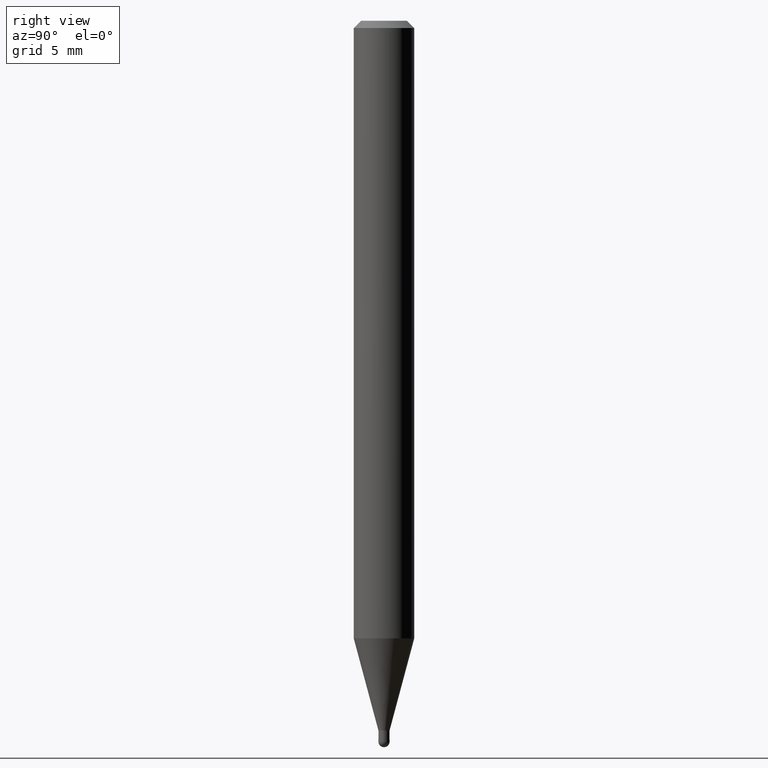
[diagram: clean part render]
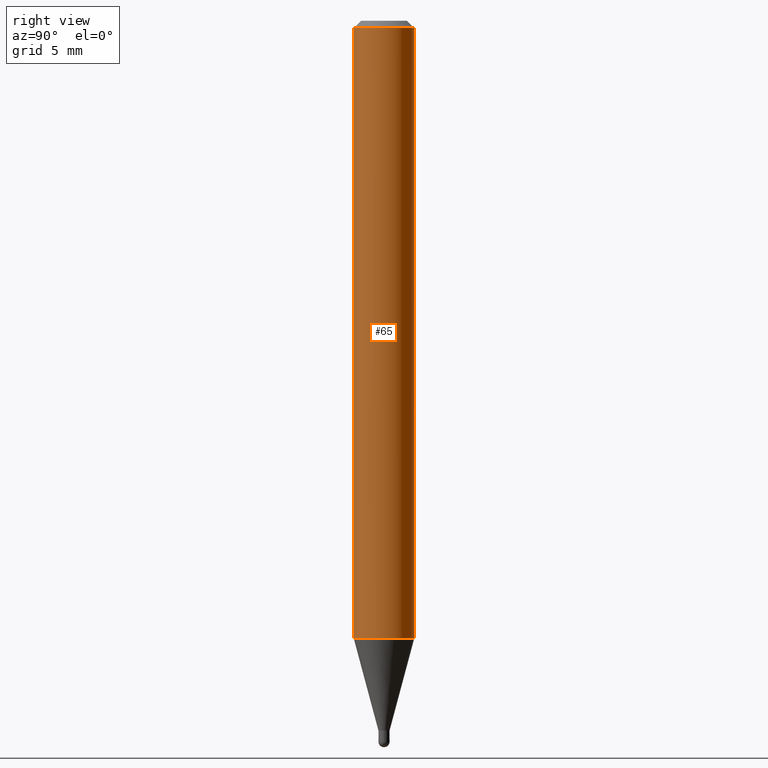
[diagram: same view with one face highlighted and labeled with its STEP entity id]
A machine part, right view. The second image highlights one B-rep face of the part: STEP entity #65.
In plain terms, the highlighted cylindrical surface (edge-blend (fillet) strip) has radius 1.5875 mm, axis along (-0, 0, 1).
Its self-contained STEP definition (entity closure, byte-faithful):
#1 = AXIS2_PLACEMENT_3D ( 'NONE', #470, #182, #310 ) ;
#17 = ORIENTED_EDGE ( 'NONE', *, *, #478, .F. ) ;
#23 = CARTESIAN_POINT ( 'NONE',  ( 4.440892098500625669E-16, 0.06250000000000000000, -2.182185329970270069E-16 ) ) ;
#32 = FACE_OUTER_BOUND ( 'NONE', #206, .T. ) ;
#48 = CARTESIAN_POINT ( 'NONE',  ( -4.364351673553606080E-16, -0.06250000000000446865, -1.275165408813993873 ) ) ;
#49 = EDGE_CURVE ( 'NONE', #268, #455, #225, .T. ) ;
#50 = ORIENTED_EDGE ( 'NONE', *, *, #49, .T. ) ;
#53 = CIRCLE ( 'NONE', #502, 0.06250000000000000000 ) ;
#65 = ADVANCED_FACE ( 'NONE', ( #32 ), #347, .T. ) ;
#73 = DIRECTION ( 'NONE',  ( -6.982962677686265922E-15, -1.000000000000000000, 3.491496527952432111E-15 ) ) ;
#80 = ORIENTED_EDGE ( 'NONE', *, *, #489, .F. ) ;
#107 = DIRECTION ( 'NONE',  ( -2.445458199686811068E-29, 3.491496527952432111E-15, 1.000000000000000000 ) ) ;
#118 = VERTEX_POINT ( 'NONE', #472 ) ;
#146 = CARTESIAN_POINT ( 'NONE',  ( 0.000000000000000000, 0.000000000000000000, 0.000000000000000000 ) ) ;
#171 = LINE ( 'NONE', #23, #451 ) ;
#182 = DIRECTION ( 'NONE',  ( -2.445458199686811068E-29, 3.491496527952432111E-15, 1.000000000000000000 ) ) ;
#205 = CARTESIAN_POINT ( 'NONE',  ( -4.364351673553912750E-16, -0.06250000000000005551, -0.01499999999999984852 ) ) ;
#206 = EDGE_LOOP ( 'NONE', ( #50, #247, #17, #80 ) ) ;
#212 = DIRECTION ( 'NONE',  ( -2.445458199686811068E-29, 3.491496527952432111E-15, 1.000000000000000000 ) ) ;
#216 = AXIS2_PLACEMENT_3D ( 'NONE', #146, #107, #73 ) ;
#225 = CIRCLE ( 'NONE', #1, 0.06250000000000000000 ) ;
#247 = ORIENTED_EDGE ( 'NONE', *, *, #504, .T. ) ;
#253 = DIRECTION ( 'NONE',  ( -2.445458199686811349E-29, 3.491496527952432506E-15, 1.000000000000000000 ) ) ;
#268 = VERTEX_POINT ( 'NONE', #48 ) ;
#297 = VERTEX_POINT ( 'NONE', #205 ) ;
#310 = DIRECTION ( 'NONE',  ( -6.982962677686265922E-15, -1.000000000000000000, 4.370956789862821150E-15 ) ) ;
#335 = DIRECTION ( 'NONE',  ( -2.445458199686811349E-29, 3.491496527952432506E-15, 1.000000000000000000 ) ) ;
#341 = LINE ( 'NONE', #497, #348 ) ;
#347 = CYLINDRICAL_SURFACE ( 'NONE', #216, 0.06250000000000000000 ) ;
#348 = VECTOR ( 'NONE', #253, 39.37007874015748143 ) ;
#376 = CARTESIAN_POINT ( 'NONE',  ( 3.668187299530233313E-31, -5.237244791928671192E-17, -0.01500000000000006710 ) ) ;
#417 = DIRECTION ( 'NONE',  ( -6.982962677686265922E-15, -1.000000000000000000, 3.483106191921935554E-15 ) ) ;
#451 = VECTOR ( 'NONE', #335, 39.37007874015748143 ) ;
#455 = VERTEX_POINT ( 'NONE', #490 ) ;
#470 = CARTESIAN_POINT ( 'NONE',  ( 3.118363704941167233E-29, -4.452235597439104225E-15, -1.275165408813994095 ) ) ;
#472 = CARTESIAN_POINT ( 'NONE',  ( 4.440892098500939734E-16, 0.06249999999999995143, -0.01500000000000028394 ) ) ;
#478 = EDGE_CURVE ( 'NONE', #297, #118, #53, .T. ) ;
#489 = EDGE_CURVE ( 'NONE', #268, #297, #341, .T. ) ;
#490 = CARTESIAN_POINT ( 'NONE',  ( 4.440892098500936776E-16, 0.06249999999999554523, -1.275165408813994539 ) ) ;
#497 = CARTESIAN_POINT ( 'NONE',  ( -4.364351673553916201E-16, -0.06250000000000000000, 2.182185329970270069E-16 ) ) ;
#502 = AXIS2_PLACEMENT_3D ( 'NONE', #376, #212, #417 ) ;
#504 = EDGE_CURVE ( 'NONE', #455, #118, #171, .T. ) ;